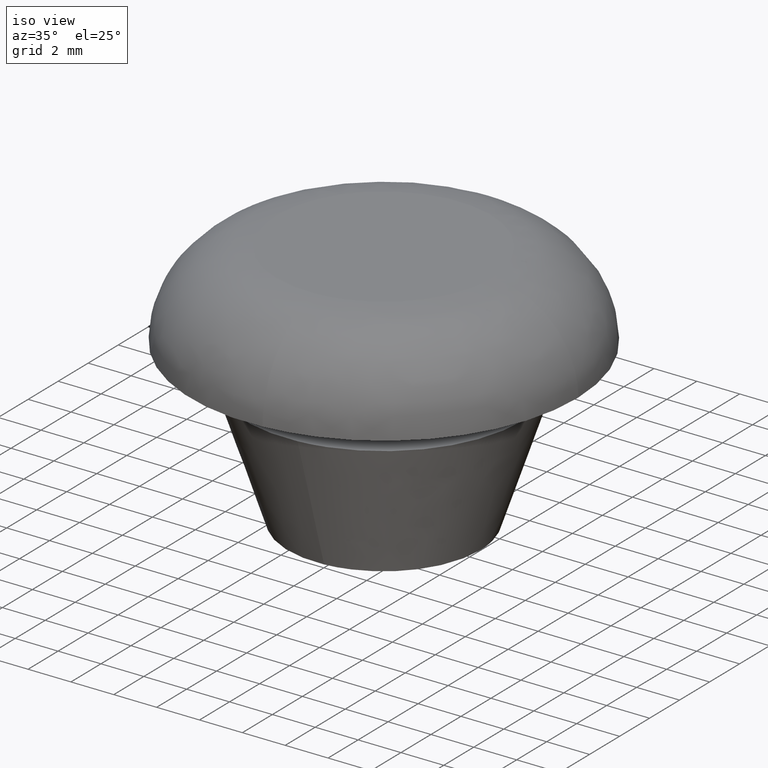
[diagram: clean part render]
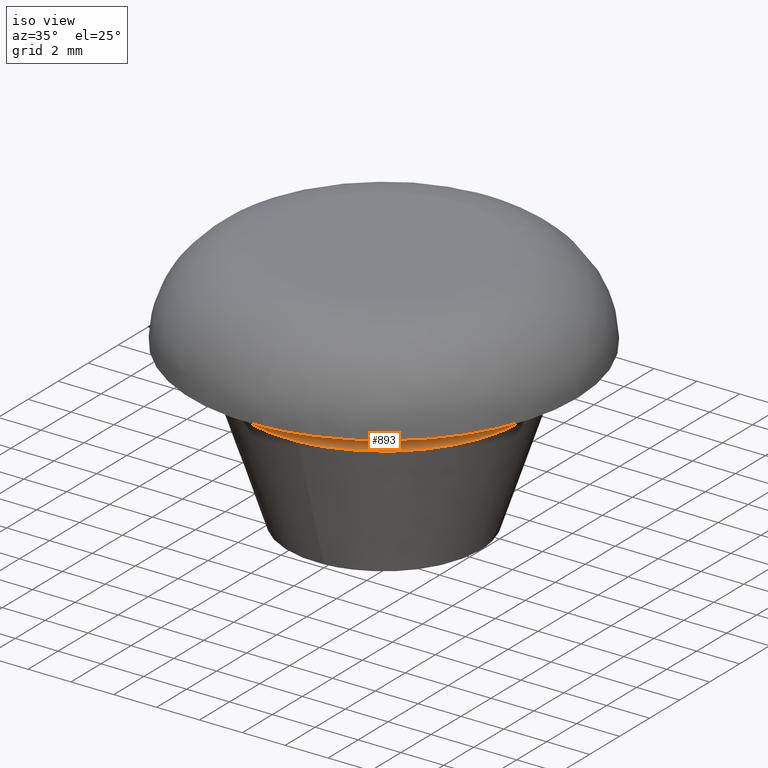
[diagram: same view with one face highlighted and labeled with its STEP entity id]
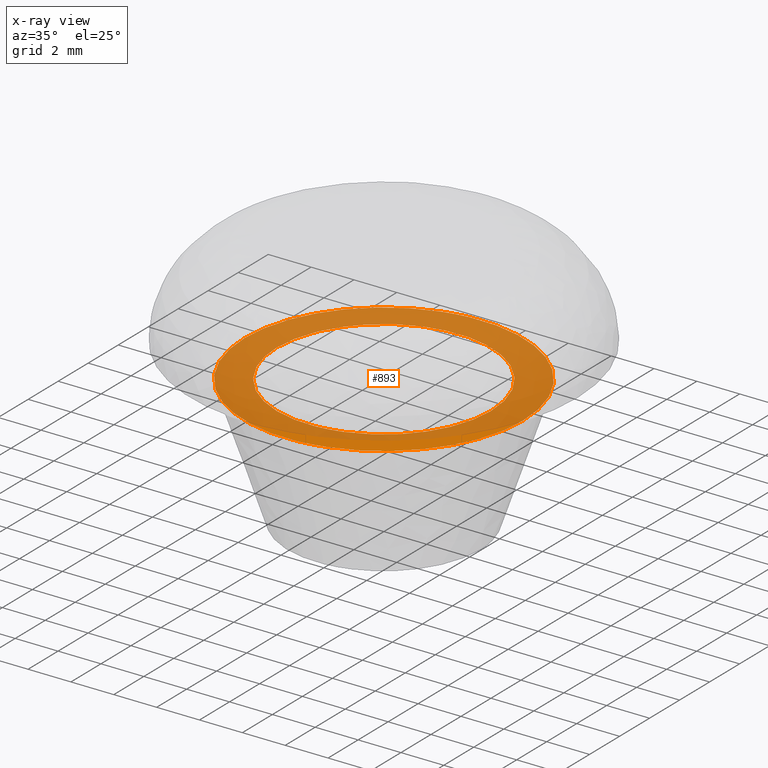
[diagram: x-ray of the same camera — body ghosted, the highlighted face saturated]
A machine part, iso view. The second image highlights one B-rep face of the part: STEP entity #893.
The next image is the same camera in x-ray: the body ghosted, the highlighted face saturated — about 87% of this face is hidden behind the body in this view.
In plain terms, the highlighted face is a freeform B-spline surface patch.
Its self-contained STEP definition (entity closure, byte-faithful):
#290=CARTESIAN_POINT('',(0.305237081557413,-4.990674335599413,6.0));
#291=VERTEX_POINT('',#290);
#297=CARTESIAN_POINT('',(5.0,0.0,6.0));
#298=VERTEX_POINT('',#297);
#299=CARTESIAN_POINT('',(5.0,0.0,6.0));
#300=CARTESIAN_POINT('',(4.999999999999999,-4.703535637409559,6.0));
#301=CARTESIAN_POINT('',(0.305237081557413,-4.990674335599414,6.000000000000001));
#309=(BOUNDED_CURVE()B_SPLINE_CURVE(2,(#299,#300,#301),.UNSPECIFIED.,.F.,.U.)B_SPLINE_CURVE_WITH_KNOTS((3,3),(0.500000000000000,0.739333156412752),.UNSPECIFIED.)CURVE()GEOMETRIC_REPRESENTATION_ITEM()RATIONAL_B_SPLINE_CURVE((1.0,0.719603765797943,0.976072457818505))REPRESENTATION_ITEM(''));
#310=EDGE_CURVE('',#298,#291,#309,.T.);
#312=CARTESIAN_POINT('',(-0.590169476332178,4.965047833526166,6.0));
#313=VERTEX_POINT('',#312);
#314=CARTESIAN_POINT('',(-0.590169476332178,4.965047833526166,6.000000000000001));
#315=CARTESIAN_POINT('',(-0.296119740813809,5.0,6.0));
#316=CARTESIAN_POINT('',(0.0,5.0,6.0));
#317=CARTESIAN_POINT('',(5.000000000000001,5.000000000000001,6.0));
#318=CARTESIAN_POINT('',(5.0,0.0,6.0));
#326=(BOUNDED_CURVE()B_SPLINE_CURVE(2,(#314,#315,#316,#317,#318),.UNSPECIFIED.,.F.,.U.)B_SPLINE_CURVE_WITH_KNOTS((3,2,3),(0.229562531277496,0.250000000000000,0.500000000000000),.UNSPECIFIED.)CURVE()GEOMETRIC_REPRESENTATION_ITEM()RATIONAL_B_SPLINE_CURVE((0.956026867403510,0.976056016005866,1.0,0.707106781186548,1.0))REPRESENTATION_ITEM(''));
#327=EDGE_CURVE('',#313,#298,#326,.T.);
#371=CARTESIAN_POINT('',(-5.0,0.0,6.0));
#372=VERTEX_POINT('',#371);
#373=CARTESIAN_POINT('',(-5.0,0.0,6.0));
#374=CARTESIAN_POINT('',(-5.0,4.440874158241168,6.0));
#375=CARTESIAN_POINT('',(-0.590169476332178,4.965047833526166,6.000000000000001));
#383=(BOUNDED_CURVE()B_SPLINE_CURVE(2,(#373,#374,#375),.UNSPECIFIED.,.F.,.U.)B_SPLINE_CURVE_WITH_KNOTS((3,3),(0.0,0.229562531277496),.UNSPECIFIED.)CURVE()GEOMETRIC_REPRESENTATION_ITEM()RATIONAL_B_SPLINE_CURVE((1.0,0.731050765180682,0.956026867403510))REPRESENTATION_ITEM(''));
#384=EDGE_CURVE('',#372,#313,#383,.T.);
#386=CARTESIAN_POINT('',(0.305237081557413,-4.990674335599414,6.000000000000001));
#387=CARTESIAN_POINT('',(0.152761000561227,-5.0,6.000000000000001));
#388=CARTESIAN_POINT('',(0.0,-5.0,6.0));
#389=CARTESIAN_POINT('',(-5.000000000000001,-5.000000000000001,6.0));
#390=CARTESIAN_POINT('',(-5.0,0.0,6.0));
#398=(BOUNDED_CURVE()B_SPLINE_CURVE(2,(#386,#387,#388,#389,#390),.UNSPECIFIED.,.F.,.U.)B_SPLINE_CURVE_WITH_KNOTS((3,2,3),(0.739333156412752,0.750000000000000,1.0),.UNSPECIFIED.)CURVE()GEOMETRIC_REPRESENTATION_ITEM()RATIONAL_B_SPLINE_CURVE((0.976072457818505,0.987503015388605,1.0,0.707106781186548,1.0))REPRESENTATION_ITEM(''));
#399=EDGE_CURVE('',#291,#372,#398,.T.);
#472=CARTESIAN_POINT('',(0.509980382880330,-6.479961963647005,5.999997009518591));
#473=VERTEX_POINT('',#472);
#479=CARTESIAN_POINT('',(-6.500000000000000,0.0,6.0));
#480=VERTEX_POINT('',#479);
#481=CARTESIAN_POINT('',(0.509980382880330,-6.479961963647005,5.999997009518592));
#482=CARTESIAN_POINT('',(0.255383779694899,-6.499999024290850,5.999997063824478));
#483=CARTESIAN_POINT('',(-0.000000075253000,-6.499999043813085,5.999997122572222));
#484=CARTESIAN_POINT('',(-6.500000036148163,-6.499999540690751,5.999998617812927));
#485=CARTESIAN_POINT('',(-6.500000000000000,0.0,6.0));
#493=(BOUNDED_CURVE()B_SPLINE_CURVE(2,(#481,#482,#483,#484,#485),.UNSPECIFIED.,.F.,.U.)B_SPLINE_CURVE_WITH_KNOTS((3,2,3),(0.736331397486609,0.750000000000000,1.0),.UNSPECIFIED.)CURVE()GEOMETRIC_REPRESENTATION_ITEM()RATIONAL_B_SPLINE_CURVE((0.969723558298482,0.983986236052685,1.0,0.707106781186547,1.0))REPRESENTATION_ITEM(''));
#494=EDGE_CURVE('',#473,#480,#493,.T.);
#496=CARTESIAN_POINT('',(-0.509980382880330,6.479961963647005,5.999997009518590));
#497=VERTEX_POINT('',#496);
#498=CARTESIAN_POINT('',(-6.500000000000000,0.0,6.0));
#499=CARTESIAN_POINT('',(-6.499999960895162,6.008541104187772,5.999998504759296));
#500=CARTESIAN_POINT('',(-0.509980382880331,6.479961963647006,5.999997009518590));
#508=(BOUNDED_CURVE()B_SPLINE_CURVE(2,(#498,#499,#500),.UNSPECIFIED.,.F.,.U.)B_SPLINE_CURVE_WITH_KNOTS((3,3),(0.0,0.236331397486609),.UNSPECIFIED.)CURVE()GEOMETRIC_REPRESENTATION_ITEM()RATIONAL_B_SPLINE_CURVE((1.0,0.723120545133863,0.969723558298482))REPRESENTATION_ITEM(''));
#509=EDGE_CURVE('',#480,#497,#508,.T.);
#555=CARTESIAN_POINT('',(6.500000000000000,0.0,6.0));
#556=VERTEX_POINT('',#555);
#557=CARTESIAN_POINT('',(-0.509980382880331,6.479961963647006,5.999997009518590));
#558=CARTESIAN_POINT('',(-0.255383779694900,6.499999024290850,5.999997063824477));
#559=CARTESIAN_POINT('',(0.000000075252999,6.499999043813086,5.999997122572222));
#560=CARTESIAN_POINT('',(6.500000036148161,6.499999540690751,5.999998617812927));
#561=CARTESIAN_POINT('',(6.500000000000000,0.0,6.0));
#569=(BOUNDED_CURVE()B_SPLINE_CURVE(2,(#557,#558,#559,#560,#561),.UNSPECIFIED.,.F.,.U.)B_SPLINE_CURVE_WITH_KNOTS((3,2,3),(0.236331397486609,0.250000000000000,0.500000000000000),.UNSPECIFIED.)CURVE()GEOMETRIC_REPRESENTATION_ITEM()RATIONAL_B_SPLINE_CURVE((0.969723558298482,0.983986236052685,1.0,0.707106781186547,1.0))REPRESENTATION_ITEM(''));
#570=EDGE_CURVE('',#497,#556,#569,.T.);
#572=CARTESIAN_POINT('',(6.500000000000000,0.0,6.0));
#573=CARTESIAN_POINT('',(6.499999960895162,-6.008541104187774,5.999998504759294));
#574=CARTESIAN_POINT('',(0.509980382880330,-6.479961963647006,5.999997009518592));
#582=(BOUNDED_CURVE()B_SPLINE_CURVE(2,(#572,#573,#574),.UNSPECIFIED.,.F.,.U.)B_SPLINE_CURVE_WITH_KNOTS((3,3),(0.500000000000000,0.736331397486609),.UNSPECIFIED.)CURVE()GEOMETRIC_REPRESENTATION_ITEM()RATIONAL_B_SPLINE_CURVE((1.0,0.723120545133863,0.969723558298482))REPRESENTATION_ITEM(''));
#583=EDGE_CURVE('',#556,#473,#582,.T.);
#876=CARTESIAN_POINT('',(-7.149349974803477,-7.147364870001820,6.0));
#877=CARTESIAN_POINT('',(7.149350323490650,-7.147364870001820,6.0));
#878=CARTESIAN_POINT('',(-7.149349974803477,7.147365218688990,6.0));
#879=CARTESIAN_POINT('',(7.149350323490650,7.147365218688990,6.0));
#880=B_SPLINE_SURFACE_WITH_KNOTS('',1,1,((#876,#878),(#877,#879)),.UNSPECIFIED.,.F.,.F.,.U.,(2,2),(2,2),(0.0,14.298700298294129),(0.0,14.294730088690811),.UNSPECIFIED.);
#881=ORIENTED_EDGE('',*,*,#494,.F.);
#882=ORIENTED_EDGE('',*,*,#583,.F.);
#883=ORIENTED_EDGE('',*,*,#570,.F.);
#884=ORIENTED_EDGE('',*,*,#509,.F.);
#885=EDGE_LOOP('',(#881,#882,#883,#884));
#886=FACE_OUTER_BOUND('',#885,.T.);
#887=ORIENTED_EDGE('',*,*,#310,.T.);
#888=ORIENTED_EDGE('',*,*,#399,.T.);
#889=ORIENTED_EDGE('',*,*,#384,.T.);
#890=ORIENTED_EDGE('',*,*,#327,.T.);
#891=EDGE_LOOP('',(#887,#888,#889,#890));
#892=FACE_BOUND('',#891,.T.);
#893=ADVANCED_FACE('',(#886,#892),#880,.T.);